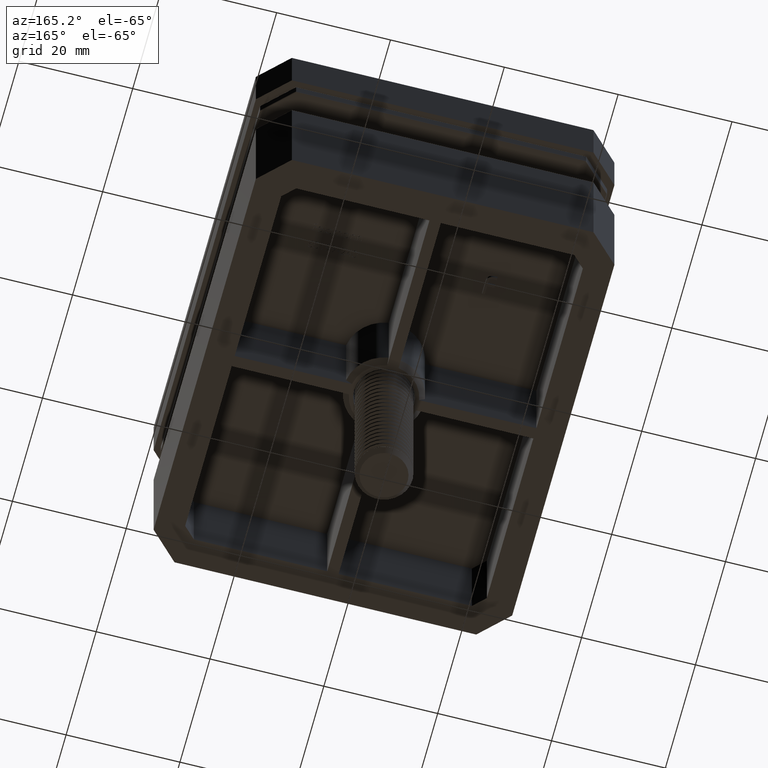
[diagram: clean part render]
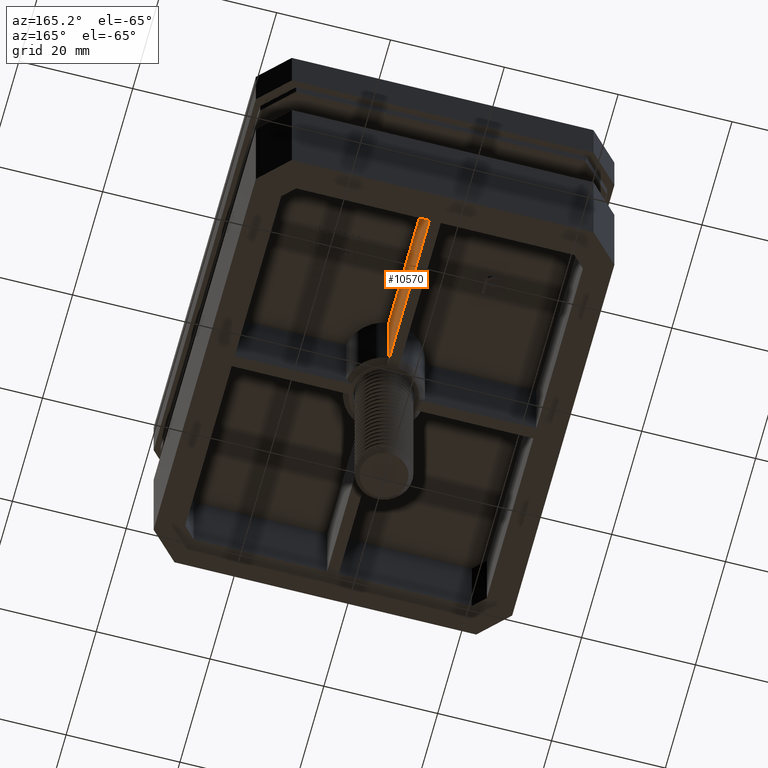
[diagram: same view with one face highlighted and labeled with its STEP entity id]
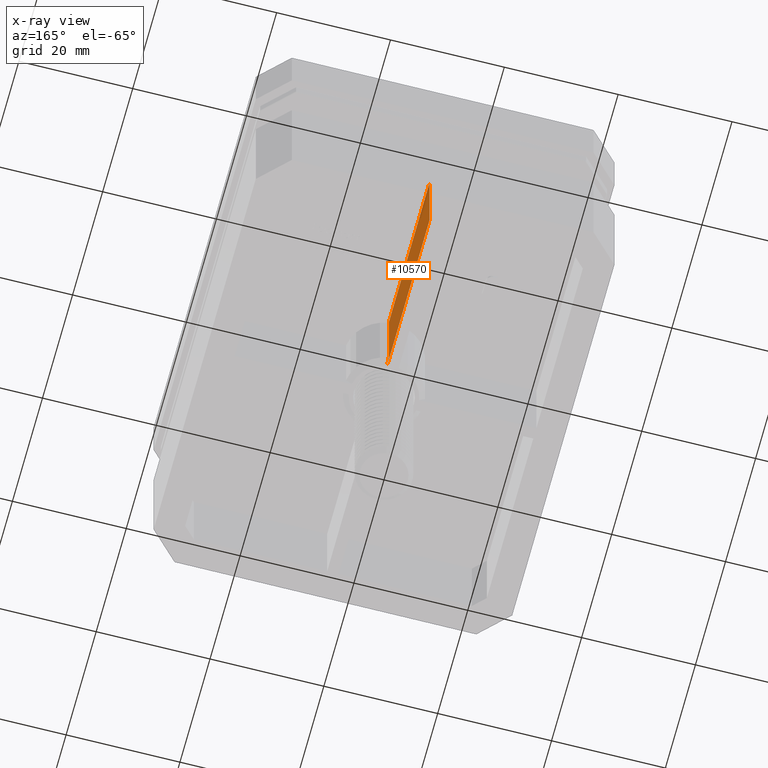
[diagram: x-ray of the same camera — body ghosted, the highlighted face saturated]
A machine part, auxiliary view. The second image highlights one B-rep face of the part: STEP entity #10570.
The next image is the same camera in x-ray: the body ghosted, the highlighted face saturated — about 4% of this face is hidden behind the body in this view.
In plain terms, the highlighted planar face has unit normal (-1, -0, 0).
Its self-contained STEP definition (entity closure, byte-faithful):
#1585 = CARTESIAN_POINT ( 'NONE',  ( 1.000000000000010880, 6.928203230275507885, -27.14557386280987217 ) ) ;
#1653 = CARTESIAN_POINT ( 'NONE',  ( 1.000000000000010880, 6.928203230275507885, 0.9999999999999974465 ) ) ;
#2319 = CARTESIAN_POINT ( 'NONE',  ( 1.000000000000010880, 6.928203230275507885, 14.99999999999999645 ) ) ;
#2456 = CARTESIAN_POINT ( 'NONE',  ( 1.000000000000007772, 34.00000000000001421, 15.00000000000000000 ) ) ;
#2593 = LINE ( 'NONE', #12049, #25460 ) ;
#3109 = VECTOR ( 'NONE', #4348, 1000.000000000000000 ) ;
#3401 = VERTEX_POINT ( 'NONE', #23067 ) ;
#4348 = DIRECTION ( 'NONE',  ( 2.162653547240449034E-16, -1.000000000000000000, 0.000000000000000000 ) ) ;
#5214 = ORIENTED_EDGE ( 'NONE', *, *, #20208, .T. ) ;
#6526 = B_SPLINE_CURVE_WITH_KNOTS ( 'NONE', 3,
 ( #22916, #8540, #30230, #24987 ),
 .UNSPECIFIED., .F., .F.,
 ( 4, 4 ),
 ( 0.000000000000000000, 0.001422811959579758272 ),
 .UNSPECIFIED. ) ;
#7611 = VECTOR ( 'NONE', #16135, 1000.000000000000000 ) ;
#8507 = EDGE_CURVE ( 'NONE', #3401, #23060, #23339, .T. ) ;
#8540 = CARTESIAN_POINT ( 'NONE',  ( 1.000000000000010880, 6.591119008006878666, 0.6663731432005064459 ) ) ;
#8650 = FACE_OUTER_BOUND ( 'NONE', #11519, .T. ) ;
#8660 = CARTESIAN_POINT ( 'NONE',  ( 1.000000000000012434, 2.162653547240475658E-16, 0.000000000000000000 ) ) ;
#10570 = ADVANCED_FACE ( 'NONE', ( #8650 ), #22634, .F. ) ;
#11410 = DIRECTION ( 'NONE',  ( -0.000000000000000000, -0.000000000000000000, 1.000000000000000000 ) ) ;
#11519 = EDGE_LOOP ( 'NONE', ( #29081, #22718, #20956, #30213, #5214 ) ) ;
#12049 = CARTESIAN_POINT ( 'NONE',  ( 1.000000000000012434, 2.162653547240475658E-16, 15.00000000000000000 ) ) ;
#12976 = VERTEX_POINT ( 'NONE', #1653 ) ;
#13026 = DIRECTION ( 'NONE',  ( -1.000000000000000000, -2.162653547240449034E-16, 0.000000000000000000 ) ) ;
#14659 = DIRECTION ( 'NONE',  ( 2.162653547240449034E-16, -1.000000000000000000, 0.000000000000000000 ) ) ;
#16135 = DIRECTION ( 'NONE',  ( -0.000000000000000000, -0.000000000000000000, 1.000000000000000000 ) ) ;
#16209 = AXIS2_PLACEMENT_3D ( 'NONE', #27136, #13026, #22228 ) ;
#17079 = VECTOR ( 'NONE', #11410, 1000.000000000000000 ) ;
#17226 = VERTEX_POINT ( 'NONE', #2456 ) ;
#20208 = EDGE_CURVE ( 'NONE', #12976, #23060, #6526, .T. ) ;
#20956 = ORIENTED_EDGE ( 'NONE', *, *, #28047, .T. ) ;
#20995 = VERTEX_POINT ( 'NONE', #2319 ) ;
#22228 = DIRECTION ( 'NONE',  ( 2.162653547240449034E-16, -1.000000000000000000, 0.000000000000000000 ) ) ;
#22634 = PLANE ( 'NONE',  #16209 ) ;
#22718 = ORIENTED_EDGE ( 'NONE', *, *, #30228, .T. ) ;
#22916 = CARTESIAN_POINT ( 'NONE',  ( 1.000000000000010880, 6.928203230275507885, 0.9999999999999974465 ) ) ;
#23060 = VERTEX_POINT ( 'NONE', #25904 ) ;
#23067 = CARTESIAN_POINT ( 'NONE',  ( 1.000000000000007772, 34.00000000000001421, 0.000000000000000000 ) ) ;
#23339 = LINE ( 'NONE', #8660, #3109 ) ;
#23352 = CARTESIAN_POINT ( 'NONE',  ( 1.000000000000007772, 34.00000000000001421, -27.14557386280987217 ) ) ;
#23405 = EDGE_CURVE ( 'NONE', #12976, #20995, #25597, .T. ) ;
#24987 = CARTESIAN_POINT ( 'NONE',  ( 1.000000000000011102, 5.916079783099622347, 0.000000000000000000 ) ) ;
#25460 = VECTOR ( 'NONE', #14659, 1000.000000000000000 ) ;
#25597 = LINE ( 'NONE', #1585, #7611 ) ;
#25904 = CARTESIAN_POINT ( 'NONE',  ( 1.000000000000011102, 5.916079783099622347, 0.000000000000000000 ) ) ;
#26056 = LINE ( 'NONE', #23352, #17079 ) ;
#27136 = CARTESIAN_POINT ( 'NONE',  ( 1.000000000000012434, 2.162653547240475658E-16, -27.14557386280987217 ) ) ;
#28047 = EDGE_CURVE ( 'NONE', #17226, #20995, #2593, .T. ) ;
#29081 = ORIENTED_EDGE ( 'NONE', *, *, #8507, .F. ) ;
#30213 = ORIENTED_EDGE ( 'NONE', *, *, #23405, .F. ) ;
#30228 = EDGE_CURVE ( 'NONE', #3401, #17226, #26056, .T. ) ;
#30230 = CARTESIAN_POINT ( 'NONE',  ( 1.000000000000011102, 6.253793210437243566, 0.3329899299922322586 ) ) ;